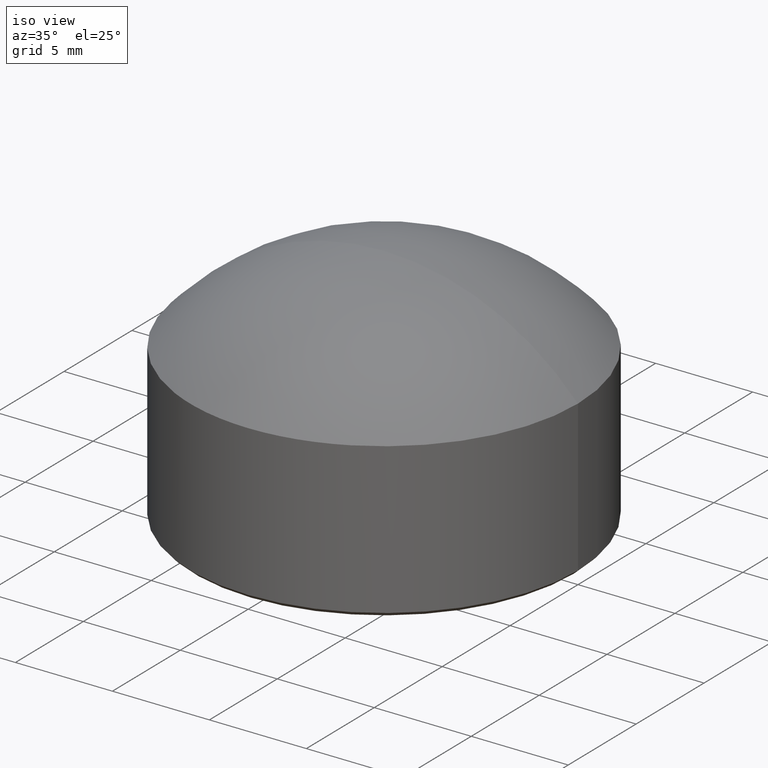
[diagram: clean part render]
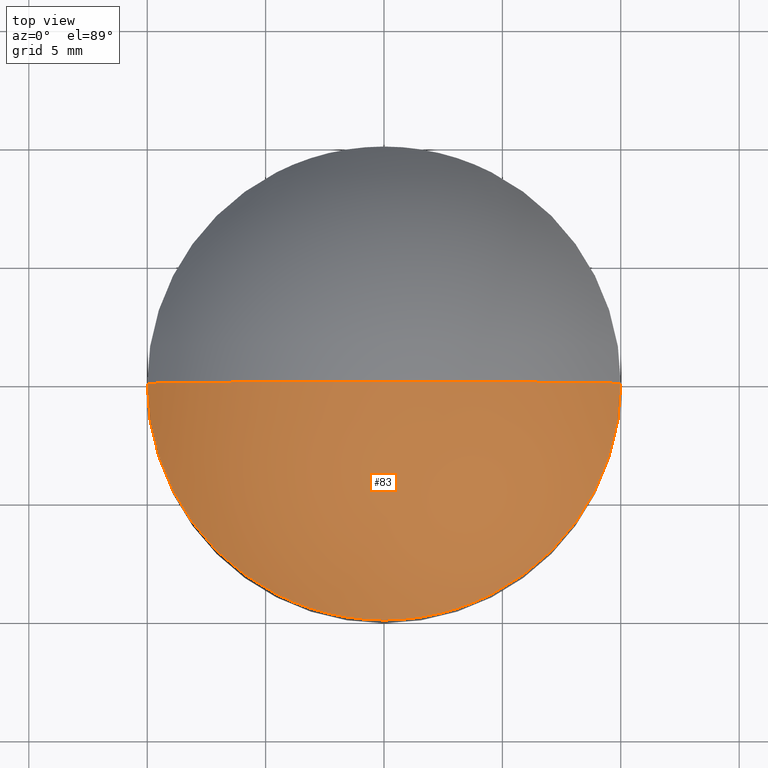
[diagram: tour spotlight — one face highlighted and labeled with its STEP entity id]
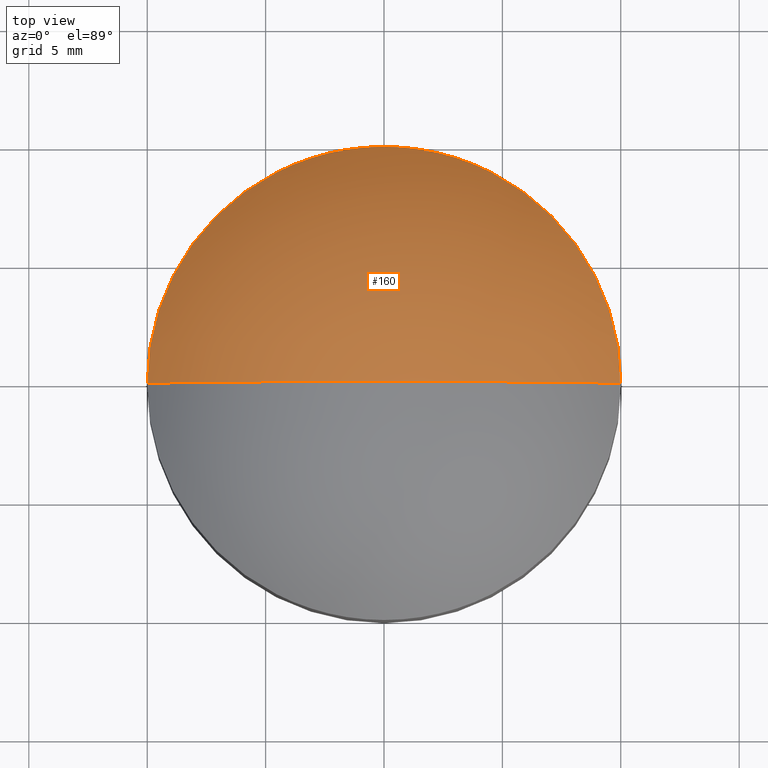
[diagram: tour spotlight — one face highlighted and labeled with its STEP entity id]
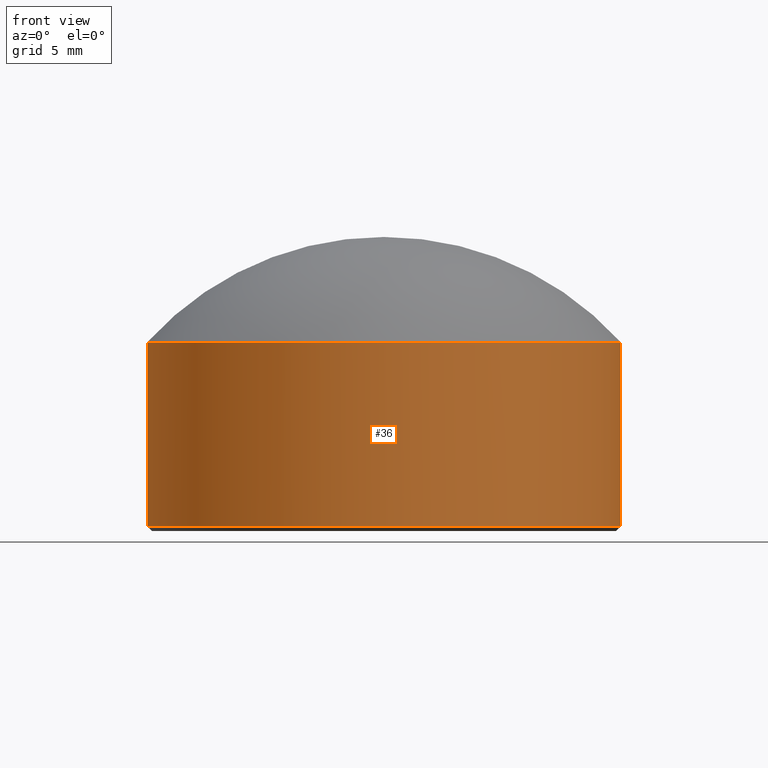
[diagram: tour spotlight — one face highlighted and labeled with its STEP entity id]
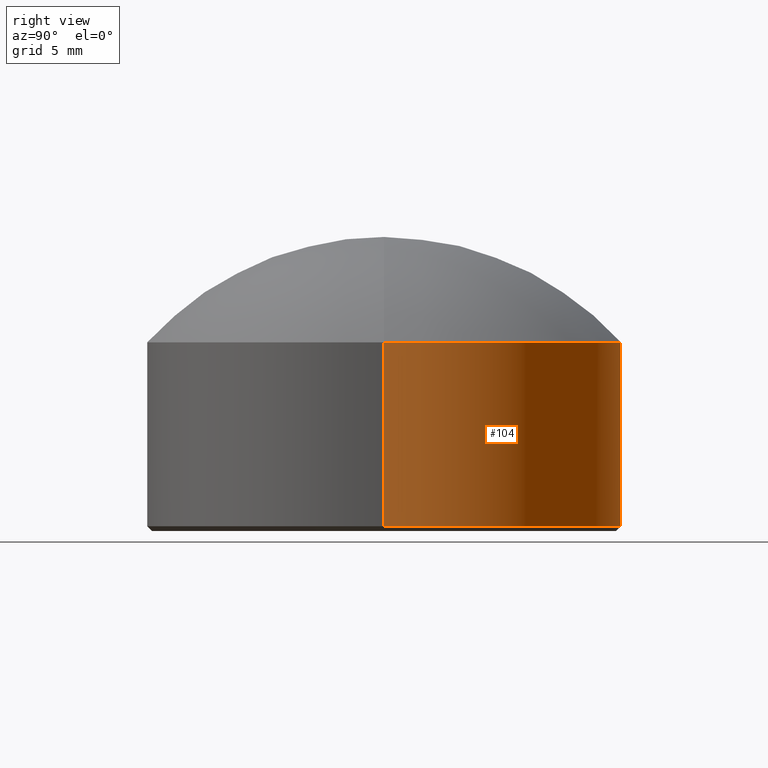
[diagram: tour spotlight — one face highlighted and labeled with its STEP entity id]
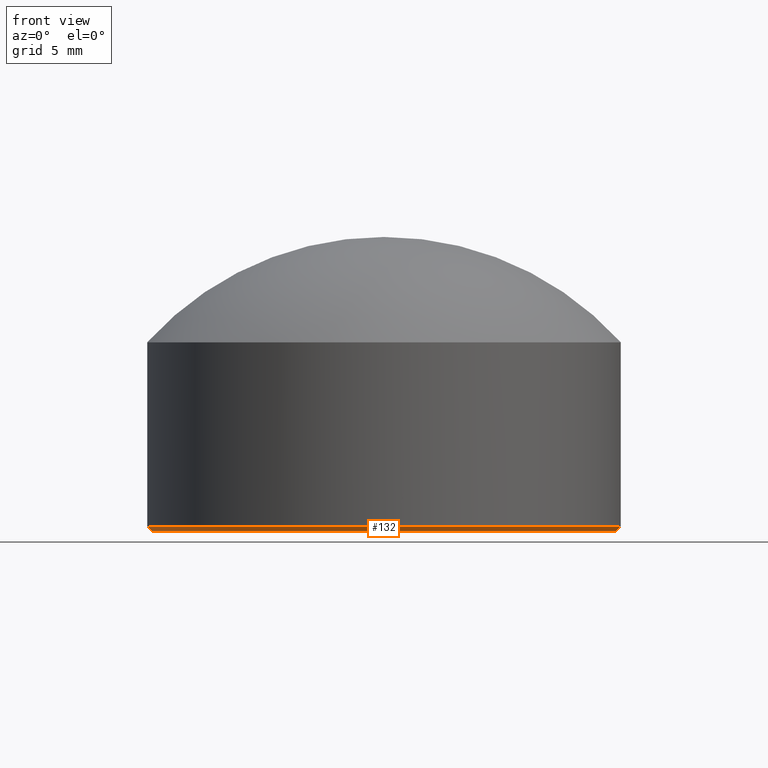
[diagram: tour spotlight — one face highlighted and labeled with its STEP entity id]
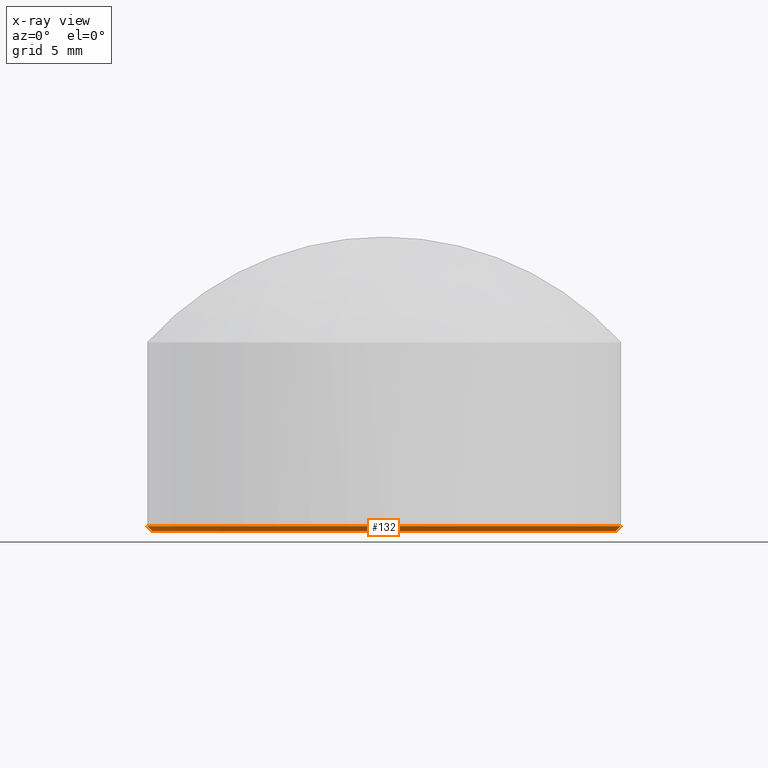
[diagram: x-ray of the same camera — body ghosted, this tour face saturated]
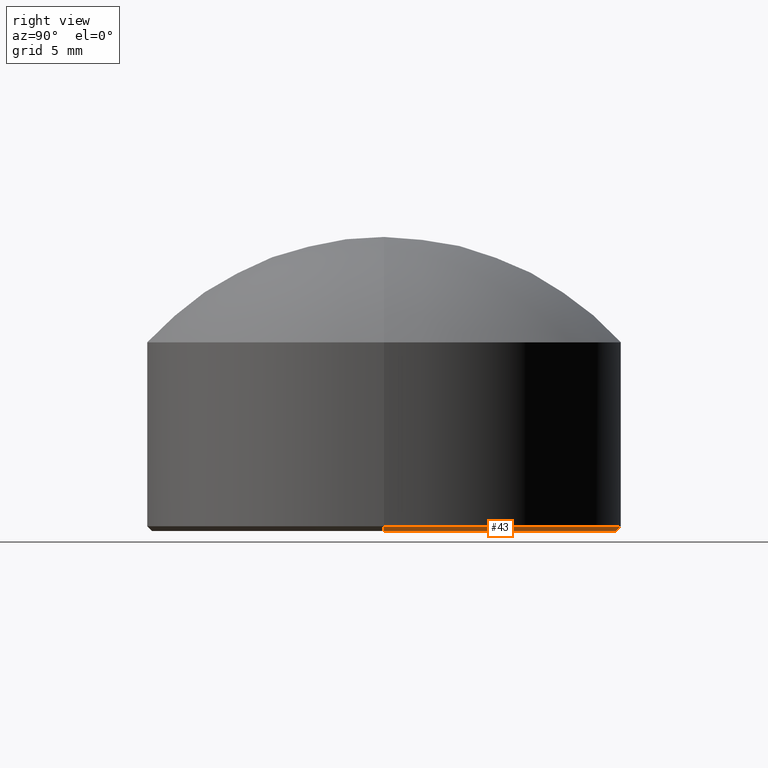
[diagram: tour spotlight — one face highlighted and labeled with its STEP entity id]
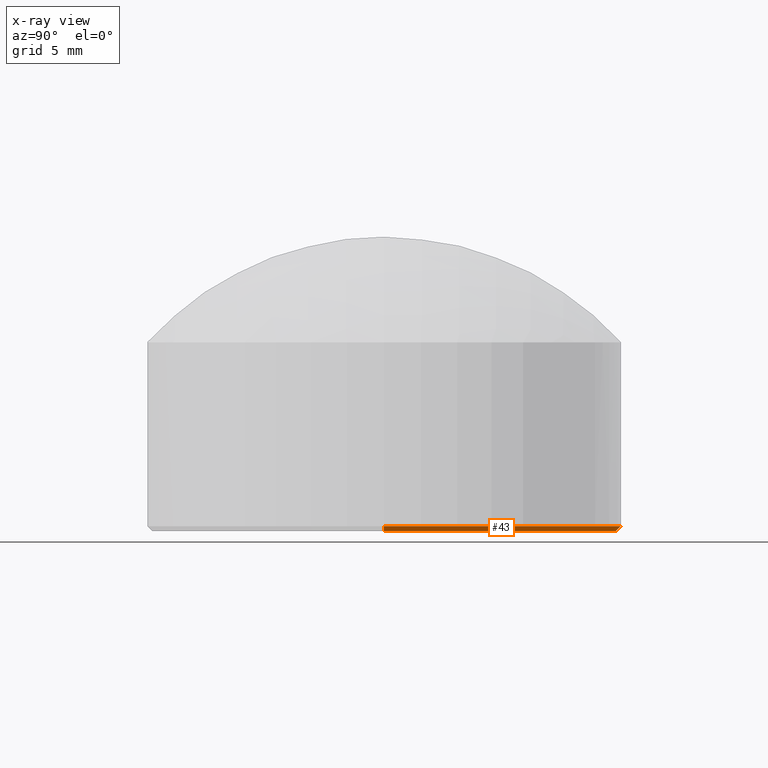
[diagram: x-ray of the same camera — body ghosted, this tour face saturated]
A machine part: a face-by-face anatomy tour. The part has 7 B-rep faces; the first image is the clean iso view, then the 6 largest visible faces are spotlighted one at a time (largest first), each with its STEP entity span.

Face 1 — top view, entity #83. In plain terms, the highlighted spherical surface has radius 13.461 mm.
Definition (entity closure, byte-faithful):
#8 = AXIS2_PLACEMENT_3D ( 'NONE', #114, #180, #177 ) ;
#10 = EDGE_CURVE ( 'NONE', #33, #90, #189, .T. ) ;
#14 = VERTEX_POINT ( 'NONE', #136 ) ;
#18 = ORIENTED_EDGE ( 'NONE', *, *, #138, .T. ) ;
#22 = FACE_OUTER_BOUND ( 'NONE', #52, .T. ) ;
#33 = VERTEX_POINT ( 'NONE', #95 ) ;
#42 = DIRECTION ( 'NONE',  ( -1.000000000000000000, 0.000000000000000000, 0.000000000000000000 ) ) ;
#52 = EDGE_LOOP ( 'NONE', ( #18, #168, #165 ) ) ;
#59 = CARTESIAN_POINT ( 'NONE',  ( 0.000000000000000000, 0.000000000000000000, -1.040955056179774019 ) ) ;
#71 = DIRECTION ( 'NONE',  ( 0.000000000000000000, 1.000000000000000000, 0.000000000000000000 ) ) ;
#76 = SPHERICAL_SURFACE ( 'NONE', #196, 13.46095505617977395 ) ;
#77 = DIRECTION ( 'NONE',  ( 1.000000000000000000, -1.224646799147353207E-16, 0.000000000000000000 ) ) ;
#83 = ADVANCED_FACE ( 'NONE', ( #22 ), #76, .T. ) ;
#90 = VERTEX_POINT ( 'NONE', #110 ) ;
#93 = AXIS2_PLACEMENT_3D ( 'NONE', #216, #71, #171 ) ;
#95 = CARTESIAN_POINT ( 'NONE',  ( -10.00000000000000000, 0.000000000000000000, 7.969999999999999751 ) ) ;
#110 = CARTESIAN_POINT ( 'NONE',  ( -8.242457761508470905E-16, 0.000000000000000000, 12.41999999999999993 ) ) ;
#112 = CIRCLE ( 'NONE', #8, 10.00000000000000000 ) ;
#114 = CARTESIAN_POINT ( 'NONE',  ( 0.000000000000000000, 0.000000000000000000, 7.969999999999999751 ) ) ;
#122 = EDGE_CURVE ( 'NONE', #14, #90, #194, .T. ) ;
#136 = CARTESIAN_POINT ( 'NONE',  ( 10.00000000000000000, 1.224646799147353256E-15, 7.969999999999999751 ) ) ;
#138 = EDGE_CURVE ( 'NONE', #33, #14, #112, .T. ) ;
#146 = CARTESIAN_POINT ( 'NONE',  ( 0.000000000000000000, 0.000000000000000000, -1.040955056179774019 ) ) ;
#165 = ORIENTED_EDGE ( 'NONE', *, *, #10, .F. ) ;
#168 = ORIENTED_EDGE ( 'NONE', *, *, #122, .T. ) ;
#171 = DIRECTION ( 'NONE',  ( 0.000000000000000000, 0.000000000000000000, 1.000000000000000000 ) ) ;
#177 = DIRECTION ( 'NONE',  ( 1.000000000000000000, 0.000000000000000000, 0.000000000000000000 ) ) ;
#178 = AXIS2_PLACEMENT_3D ( 'NONE', #146, #211, #77 ) ;
#180 = DIRECTION ( 'NONE',  ( 0.000000000000000000, 0.000000000000000000, 1.000000000000000000 ) ) ;
#189 = CIRCLE ( 'NONE', #93, 13.46095505617977395 ) ;
#194 = CIRCLE ( 'NONE', #178, 13.46095505617977395 ) ;
#196 = AXIS2_PLACEMENT_3D ( 'NONE', #59, #197, #42 ) ;
#197 = DIRECTION ( 'NONE',  ( -0.000000000000000000, -1.000000000000000000, 0.000000000000000000 ) ) ;
#211 = DIRECTION ( 'NONE',  ( -1.224646799147353207E-16, -1.000000000000000000, -0.000000000000000000 ) ) ;
#216 = CARTESIAN_POINT ( 'NONE',  ( 0.000000000000000000, 0.000000000000000000, -1.040955056179774019 ) ) ;

Face 2 — top view, entity #160. In plain terms, the highlighted spherical surface has radius 13.461 mm.
Definition (entity closure, byte-faithful):
#5 = CARTESIAN_POINT ( 'NONE',  ( 0.000000000000000000, 0.000000000000000000, 7.969999999999999751 ) ) ;
#10 = EDGE_CURVE ( 'NONE', #33, #90, #189, .T. ) ;
#14 = VERTEX_POINT ( 'NONE', #136 ) ;
#23 = EDGE_CURVE ( 'NONE', #14, #33, #69, .T. ) ;
#33 = VERTEX_POINT ( 'NONE', #95 ) ;
#44 = CARTESIAN_POINT ( 'NONE',  ( 0.000000000000000000, 0.000000000000000000, -1.040955056179774019 ) ) ;
#51 = AXIS2_PLACEMENT_3D ( 'NONE', #5, #92, #210 ) ;
#53 = ORIENTED_EDGE ( 'NONE', *, *, #23, .T. ) ;
#69 = CIRCLE ( 'NONE', #51, 10.00000000000000000 ) ;
#71 = DIRECTION ( 'NONE',  ( 0.000000000000000000, 1.000000000000000000, 0.000000000000000000 ) ) ;
#77 = DIRECTION ( 'NONE',  ( 1.000000000000000000, -1.224646799147353207E-16, 0.000000000000000000 ) ) ;
#90 = VERTEX_POINT ( 'NONE', #110 ) ;
#92 = DIRECTION ( 'NONE',  ( 0.000000000000000000, 0.000000000000000000, 1.000000000000000000 ) ) ;
#93 = AXIS2_PLACEMENT_3D ( 'NONE', #216, #71, #171 ) ;
#95 = CARTESIAN_POINT ( 'NONE',  ( -10.00000000000000000, 0.000000000000000000, 7.969999999999999751 ) ) ;
#110 = CARTESIAN_POINT ( 'NONE',  ( -8.242457761508470905E-16, 0.000000000000000000, 12.41999999999999993 ) ) ;
#113 = DIRECTION ( 'NONE',  ( -0.000000000000000000, -1.000000000000000000, 0.000000000000000000 ) ) ;
#122 = EDGE_CURVE ( 'NONE', #14, #90, #194, .T. ) ;
#128 = SPHERICAL_SURFACE ( 'NONE', #185, 13.46095505617977395 ) ;
#136 = CARTESIAN_POINT ( 'NONE',  ( 10.00000000000000000, 1.224646799147353256E-15, 7.969999999999999751 ) ) ;
#142 = FACE_OUTER_BOUND ( 'NONE', #206, .T. ) ;
#146 = CARTESIAN_POINT ( 'NONE',  ( 0.000000000000000000, 0.000000000000000000, -1.040955056179774019 ) ) ;
#160 = ADVANCED_FACE ( 'NONE', ( #142 ), #128, .T. ) ;
#171 = DIRECTION ( 'NONE',  ( 0.000000000000000000, 0.000000000000000000, 1.000000000000000000 ) ) ;
#178 = AXIS2_PLACEMENT_3D ( 'NONE', #146, #211, #77 ) ;
#185 = AXIS2_PLACEMENT_3D ( 'NONE', #44, #113, #201 ) ;
#189 = CIRCLE ( 'NONE', #93, 13.46095505617977395 ) ;
#194 = CIRCLE ( 'NONE', #178, 13.46095505617977395 ) ;
#195 = ORIENTED_EDGE ( 'NONE', *, *, #10, .T. ) ;
#201 = DIRECTION ( 'NONE',  ( -1.000000000000000000, 0.000000000000000000, 0.000000000000000000 ) ) ;
#204 = ORIENTED_EDGE ( 'NONE', *, *, #122, .F. ) ;
#206 = EDGE_LOOP ( 'NONE', ( #204, #53, #195 ) ) ;
#210 = DIRECTION ( 'NONE',  ( 1.000000000000000000, 0.000000000000000000, 0.000000000000000000 ) ) ;
#211 = DIRECTION ( 'NONE',  ( -1.224646799147353207E-16, -1.000000000000000000, -0.000000000000000000 ) ) ;
#216 = CARTESIAN_POINT ( 'NONE',  ( 0.000000000000000000, 0.000000000000000000, -1.040955056179774019 ) ) ;

Face 3 — front view, entity #36. In plain terms, the highlighted cylindrical surface (partial cylindrical patch) has radius 10 mm, axis along (-0, -0, -1).
Definition (entity closure, byte-faithful):
#4 = DIRECTION ( 'NONE',  ( -1.000000000000000000, 0.000000000000000000, 0.000000000000000000 ) ) ;
#8 = AXIS2_PLACEMENT_3D ( 'NONE', #114, #180, #177 ) ;
#11 = AXIS2_PLACEMENT_3D ( 'NONE', #141, #75, #4 ) ;
#14 = VERTEX_POINT ( 'NONE', #136 ) ;
#25 = CARTESIAN_POINT ( 'NONE',  ( 0.000000000000000000, 0.000000000000000000, 0.2000000000000005107 ) ) ;
#29 = VECTOR ( 'NONE', #147, 1000.000000000000000 ) ;
#33 = VERTEX_POINT ( 'NONE', #95 ) ;
#36 = ADVANCED_FACE ( 'NONE', ( #123 ), #108, .T. ) ;
#45 = DIRECTION ( 'NONE',  ( -0.000000000000000000, -0.000000000000000000, -1.000000000000000000 ) ) ;
#47 = LINE ( 'NONE', #213, #29 ) ;
#63 = CARTESIAN_POINT ( 'NONE',  ( 10.00000000000000000, 1.224646799147353256E-15, 7.969999999999999751 ) ) ;
#74 = CIRCLE ( 'NONE', #140, 10.00000000000000000 ) ;
#75 = DIRECTION ( 'NONE',  ( -0.000000000000000000, -0.000000000000000000, -1.000000000000000000 ) ) ;
#95 = CARTESIAN_POINT ( 'NONE',  ( -10.00000000000000000, 0.000000000000000000, 7.969999999999999751 ) ) ;
#97 = DIRECTION ( 'NONE',  ( -0.000000000000000000, -0.000000000000000000, 1.000000000000000000 ) ) ;
#103 = VERTEX_POINT ( 'NONE', #109 ) ;
#108 = CYLINDRICAL_SURFACE ( 'NONE', #11, 10.00000000000000000 ) ;
#109 = CARTESIAN_POINT ( 'NONE',  ( 10.00000000000000000, 1.224646799147353256E-15, 0.2000000000000005107 ) ) ;
#112 = CIRCLE ( 'NONE', #8, 10.00000000000000000 ) ;
#114 = CARTESIAN_POINT ( 'NONE',  ( 0.000000000000000000, 0.000000000000000000, 7.969999999999999751 ) ) ;
#116 = EDGE_CURVE ( 'NONE', #148, #103, #74, .T. ) ;
#117 = ORIENTED_EDGE ( 'NONE', *, *, #116, .T. ) ;
#118 = ORIENTED_EDGE ( 'NONE', *, *, #184, .T. ) ;
#121 = ORIENTED_EDGE ( 'NONE', *, *, #138, .F. ) ;
#123 = FACE_OUTER_BOUND ( 'NONE', #214, .T. ) ;
#125 = VECTOR ( 'NONE', #45, 1000.000000000000000 ) ;
#136 = CARTESIAN_POINT ( 'NONE',  ( 10.00000000000000000, 1.224646799147353256E-15, 7.969999999999999751 ) ) ;
#138 = EDGE_CURVE ( 'NONE', #33, #14, #112, .T. ) ;
#140 = AXIS2_PLACEMENT_3D ( 'NONE', #25, #97, #144 ) ;
#141 = CARTESIAN_POINT ( 'NONE',  ( 0.000000000000000000, 0.000000000000000000, 7.969999999999999751 ) ) ;
#144 = DIRECTION ( 'NONE',  ( 1.000000000000000000, 0.000000000000000000, 0.000000000000000000 ) ) ;
#147 = DIRECTION ( 'NONE',  ( -0.000000000000000000, -0.000000000000000000, -1.000000000000000000 ) ) ;
#148 = VERTEX_POINT ( 'NONE', #163 ) ;
#163 = CARTESIAN_POINT ( 'NONE',  ( -10.00000000000000000, 0.000000000000000000, 0.2000000000000005107 ) ) ;
#172 = ORIENTED_EDGE ( 'NONE', *, *, #209, .F. ) ;
#177 = DIRECTION ( 'NONE',  ( 1.000000000000000000, 0.000000000000000000, 0.000000000000000000 ) ) ;
#180 = DIRECTION ( 'NONE',  ( 0.000000000000000000, 0.000000000000000000, 1.000000000000000000 ) ) ;
#184 = EDGE_CURVE ( 'NONE', #33, #148, #47, .T. ) ;
#202 = LINE ( 'NONE', #63, #125 ) ;
#209 = EDGE_CURVE ( 'NONE', #14, #103, #202, .T. ) ;
#213 = CARTESIAN_POINT ( 'NONE',  ( -10.00000000000000000, 0.000000000000000000, 7.969999999999999751 ) ) ;
#214 = EDGE_LOOP ( 'NONE', ( #172, #121, #118, #117 ) ) ;

Face 4 — right view, entity #104. In plain terms, the highlighted cylindrical surface (partial cylindrical patch) has radius 10 mm, axis along (-0, -0, -1).
Definition (entity closure, byte-faithful):
#5 = CARTESIAN_POINT ( 'NONE',  ( 0.000000000000000000, 0.000000000000000000, 7.969999999999999751 ) ) ;
#14 = VERTEX_POINT ( 'NONE', #136 ) ;
#15 = ORIENTED_EDGE ( 'NONE', *, *, #184, .F. ) ;
#20 = DIRECTION ( 'NONE',  ( -0.000000000000000000, -0.000000000000000000, 1.000000000000000000 ) ) ;
#23 = EDGE_CURVE ( 'NONE', #14, #33, #69, .T. ) ;
#29 = VECTOR ( 'NONE', #147, 1000.000000000000000 ) ;
#31 = ORIENTED_EDGE ( 'NONE', *, *, #23, .F. ) ;
#33 = VERTEX_POINT ( 'NONE', #95 ) ;
#35 = EDGE_LOOP ( 'NONE', ( #31, #88, #64, #15 ) ) ;
#45 = DIRECTION ( 'NONE',  ( -0.000000000000000000, -0.000000000000000000, -1.000000000000000000 ) ) ;
#47 = LINE ( 'NONE', #213, #29 ) ;
#51 = AXIS2_PLACEMENT_3D ( 'NONE', #5, #92, #210 ) ;
#56 = EDGE_CURVE ( 'NONE', #103, #148, #135, .T. ) ;
#63 = CARTESIAN_POINT ( 'NONE',  ( 10.00000000000000000, 1.224646799147353256E-15, 7.969999999999999751 ) ) ;
#64 = ORIENTED_EDGE ( 'NONE', *, *, #56, .T. ) ;
#65 = AXIS2_PLACEMENT_3D ( 'NONE', #208, #20, #159 ) ;
#69 = CIRCLE ( 'NONE', #51, 10.00000000000000000 ) ;
#78 = DIRECTION ( 'NONE',  ( -1.000000000000000000, 0.000000000000000000, 0.000000000000000000 ) ) ;
#79 = DIRECTION ( 'NONE',  ( -0.000000000000000000, -0.000000000000000000, -1.000000000000000000 ) ) ;
#88 = ORIENTED_EDGE ( 'NONE', *, *, #209, .T. ) ;
#92 = DIRECTION ( 'NONE',  ( 0.000000000000000000, 0.000000000000000000, 1.000000000000000000 ) ) ;
#95 = CARTESIAN_POINT ( 'NONE',  ( -10.00000000000000000, 0.000000000000000000, 7.969999999999999751 ) ) ;
#103 = VERTEX_POINT ( 'NONE', #109 ) ;
#104 = ADVANCED_FACE ( 'NONE', ( #161 ), #126, .T. ) ;
#109 = CARTESIAN_POINT ( 'NONE',  ( 10.00000000000000000, 1.224646799147353256E-15, 0.2000000000000005107 ) ) ;
#125 = VECTOR ( 'NONE', #45, 1000.000000000000000 ) ;
#126 = CYLINDRICAL_SURFACE ( 'NONE', #170, 10.00000000000000000 ) ;
#135 = CIRCLE ( 'NONE', #65, 10.00000000000000000 ) ;
#136 = CARTESIAN_POINT ( 'NONE',  ( 10.00000000000000000, 1.224646799147353256E-15, 7.969999999999999751 ) ) ;
#147 = DIRECTION ( 'NONE',  ( -0.000000000000000000, -0.000000000000000000, -1.000000000000000000 ) ) ;
#148 = VERTEX_POINT ( 'NONE', #163 ) ;
#159 = DIRECTION ( 'NONE',  ( 1.000000000000000000, 0.000000000000000000, 0.000000000000000000 ) ) ;
#161 = FACE_OUTER_BOUND ( 'NONE', #35, .T. ) ;
#163 = CARTESIAN_POINT ( 'NONE',  ( -10.00000000000000000, 0.000000000000000000, 0.2000000000000005107 ) ) ;
#170 = AXIS2_PLACEMENT_3D ( 'NONE', #176, #79, #78 ) ;
#176 = CARTESIAN_POINT ( 'NONE',  ( 0.000000000000000000, 0.000000000000000000, 7.969999999999999751 ) ) ;
#184 = EDGE_CURVE ( 'NONE', #33, #148, #47, .T. ) ;
#202 = LINE ( 'NONE', #63, #125 ) ;
#208 = CARTESIAN_POINT ( 'NONE',  ( 0.000000000000000000, 0.000000000000000000, 0.2000000000000005107 ) ) ;
#209 = EDGE_CURVE ( 'NONE', #14, #103, #202, .T. ) ;
#210 = DIRECTION ( 'NONE',  ( 1.000000000000000000, 0.000000000000000000, 0.000000000000000000 ) ) ;
#213 = CARTESIAN_POINT ( 'NONE',  ( -10.00000000000000000, 0.000000000000000000, 7.969999999999999751 ) ) ;

Face 5 — front view, entity #132. An x-ray twin of the same camera follows (body ghosted, this face saturated) — the face is partly hidden behind the body. In plain terms, the highlighted conical surface has half-angle 45 deg.
Definition (entity closure, byte-faithful):
#17 = ORIENTED_EDGE ( 'NONE', *, *, #179, .F. ) ;
#19 = EDGE_CURVE ( 'NONE', #183, #103, #205, .T. ) ;
#21 = VECTOR ( 'NONE', #173, 1000.000000000000114 ) ;
#25 = CARTESIAN_POINT ( 'NONE',  ( 0.000000000000000000, 0.000000000000000000, 0.2000000000000005107 ) ) ;
#27 = DIRECTION ( 'NONE',  ( -0.7071067811865474617, 8.659560562354932858E-17, 0.7071067811865474617 ) ) ;
#37 = VERTEX_POINT ( 'NONE', #175 ) ;
#49 = AXIS2_PLACEMENT_3D ( 'NONE', #200, #131, #164 ) ;
#54 = EDGE_LOOP ( 'NONE', ( #81, #17, #101, #120 ) ) ;
#61 = CARTESIAN_POINT ( 'NONE',  ( -10.00000000000000000, 1.224646799147353256E-15, 0.2000000000000005107 ) ) ;
#74 = CIRCLE ( 'NONE', #140, 10.00000000000000000 ) ;
#80 = DIRECTION ( 'NONE',  ( -0.000000000000000000, -0.000000000000000000, -1.000000000000000000 ) ) ;
#81 = ORIENTED_EDGE ( 'NONE', *, *, #127, .F. ) ;
#96 = FACE_OUTER_BOUND ( 'NONE', #54, .T. ) ;
#97 = DIRECTION ( 'NONE',  ( -0.000000000000000000, -0.000000000000000000, 1.000000000000000000 ) ) ;
#101 = ORIENTED_EDGE ( 'NONE', *, *, #19, .T. ) ;
#103 = VERTEX_POINT ( 'NONE', #109 ) ;
#107 = CARTESIAN_POINT ( 'NONE',  ( 10.00000000000000000, 0.000000000000000000, 0.2000000000000005107 ) ) ;
#109 = CARTESIAN_POINT ( 'NONE',  ( 10.00000000000000000, 1.224646799147353256E-15, 0.2000000000000005107 ) ) ;
#116 = EDGE_CURVE ( 'NONE', #148, #103, #74, .T. ) ;
#120 = ORIENTED_EDGE ( 'NONE', *, *, #116, .F. ) ;
#127 = EDGE_CURVE ( 'NONE', #37, #148, #212, .T. ) ;
#131 = DIRECTION ( 'NONE',  ( -0.000000000000000000, -0.000000000000000000, 1.000000000000000000 ) ) ;
#132 = ADVANCED_FACE ( 'NONE', ( #96 ), #207, .T. ) ;
#134 = CARTESIAN_POINT ( 'NONE',  ( 9.799999999999998934, 0.000000000000000000, 0.000000000000000000 ) ) ;
#140 = AXIS2_PLACEMENT_3D ( 'NONE', #25, #97, #144 ) ;
#144 = DIRECTION ( 'NONE',  ( 1.000000000000000000, 0.000000000000000000, 0.000000000000000000 ) ) ;
#148 = VERTEX_POINT ( 'NONE', #163 ) ;
#157 = CIRCLE ( 'NONE', #193, 9.799999999999998934 ) ;
#163 = CARTESIAN_POINT ( 'NONE',  ( -10.00000000000000000, 0.000000000000000000, 0.2000000000000005107 ) ) ;
#164 = DIRECTION ( 'NONE',  ( 1.000000000000000000, 0.000000000000000000, 0.000000000000000000 ) ) ;
#167 = DIRECTION ( 'NONE',  ( 1.000000000000000000, 0.000000000000000000, 0.000000000000000000 ) ) ;
#173 = DIRECTION ( 'NONE',  ( 0.7071067811865474617, 0.000000000000000000, 0.7071067811865474617 ) ) ;
#175 = CARTESIAN_POINT ( 'NONE',  ( -9.799999999999998934, 1.212400331155879505E-15, 0.000000000000000000 ) ) ;
#179 = EDGE_CURVE ( 'NONE', #183, #37, #157, .T. ) ;
#183 = VERTEX_POINT ( 'NONE', #134 ) ;
#193 = AXIS2_PLACEMENT_3D ( 'NONE', #198, #80, #167 ) ;
#198 = CARTESIAN_POINT ( 'NONE',  ( 0.000000000000000000, 0.000000000000000000, 0.000000000000000000 ) ) ;
#200 = CARTESIAN_POINT ( 'NONE',  ( 0.000000000000000000, 0.000000000000000000, 0.2000000000000005107 ) ) ;
#203 = VECTOR ( 'NONE', #27, 1000.000000000000114 ) ;
#205 = LINE ( 'NONE', #107, #21 ) ;
#207 = CONICAL_SURFACE ( 'NONE', #49, 10.00000000000000000, 0.7853981633974482790 ) ;
#212 = LINE ( 'NONE', #61, #203 ) ;

Face 6 — right view, entity #43. An x-ray twin of the same camera follows (body ghosted, this face saturated) — the face is partly hidden behind the body. In plain terms, the highlighted conical surface has half-angle 45 deg.
Definition (entity closure, byte-faithful):
#19 = EDGE_CURVE ( 'NONE', #183, #103, #205, .T. ) ;
#20 = DIRECTION ( 'NONE',  ( -0.000000000000000000, -0.000000000000000000, 1.000000000000000000 ) ) ;
#21 = VECTOR ( 'NONE', #173, 1000.000000000000114 ) ;
#24 = CIRCLE ( 'NONE', #55, 9.799999999999998934 ) ;
#27 = DIRECTION ( 'NONE',  ( -0.7071067811865474617, 8.659560562354932858E-17, 0.7071067811865474617 ) ) ;
#30 = ORIENTED_EDGE ( 'NONE', *, *, #56, .F. ) ;
#37 = VERTEX_POINT ( 'NONE', #175 ) ;
#39 = CONICAL_SURFACE ( 'NONE', #162, 10.00000000000000000, 0.7853981633974482790 ) ;
#41 = CARTESIAN_POINT ( 'NONE',  ( 0.000000000000000000, 0.000000000000000000, 0.2000000000000005107 ) ) ;
#43 = ADVANCED_FACE ( 'NONE', ( #73 ), #39, .T. ) ;
#55 = AXIS2_PLACEMENT_3D ( 'NONE', #145, #133, #115 ) ;
#56 = EDGE_CURVE ( 'NONE', #103, #148, #135, .T. ) ;
#61 = CARTESIAN_POINT ( 'NONE',  ( -10.00000000000000000, 1.224646799147353256E-15, 0.2000000000000005107 ) ) ;
#65 = AXIS2_PLACEMENT_3D ( 'NONE', #208, #20, #159 ) ;
#67 = ORIENTED_EDGE ( 'NONE', *, *, #127, .T. ) ;
#73 = FACE_OUTER_BOUND ( 'NONE', #169, .T. ) ;
#103 = VERTEX_POINT ( 'NONE', #109 ) ;
#107 = CARTESIAN_POINT ( 'NONE',  ( 10.00000000000000000, 0.000000000000000000, 0.2000000000000005107 ) ) ;
#109 = CARTESIAN_POINT ( 'NONE',  ( 10.00000000000000000, 1.224646799147353256E-15, 0.2000000000000005107 ) ) ;
#115 = DIRECTION ( 'NONE',  ( 1.000000000000000000, 0.000000000000000000, 0.000000000000000000 ) ) ;
#124 = DIRECTION ( 'NONE',  ( 1.000000000000000000, 0.000000000000000000, 0.000000000000000000 ) ) ;
#127 = EDGE_CURVE ( 'NONE', #37, #148, #212, .T. ) ;
#133 = DIRECTION ( 'NONE',  ( -0.000000000000000000, -0.000000000000000000, -1.000000000000000000 ) ) ;
#134 = CARTESIAN_POINT ( 'NONE',  ( 9.799999999999998934, 0.000000000000000000, 0.000000000000000000 ) ) ;
#135 = CIRCLE ( 'NONE', #65, 10.00000000000000000 ) ;
#137 = DIRECTION ( 'NONE',  ( -0.000000000000000000, -0.000000000000000000, 1.000000000000000000 ) ) ;
#145 = CARTESIAN_POINT ( 'NONE',  ( 0.000000000000000000, 0.000000000000000000, 0.000000000000000000 ) ) ;
#148 = VERTEX_POINT ( 'NONE', #163 ) ;
#159 = DIRECTION ( 'NONE',  ( 1.000000000000000000, 0.000000000000000000, 0.000000000000000000 ) ) ;
#162 = AXIS2_PLACEMENT_3D ( 'NONE', #41, #137, #124 ) ;
#163 = CARTESIAN_POINT ( 'NONE',  ( -10.00000000000000000, 0.000000000000000000, 0.2000000000000005107 ) ) ;
#169 = EDGE_LOOP ( 'NONE', ( #187, #67, #30, #188 ) ) ;
#173 = DIRECTION ( 'NONE',  ( 0.7071067811865474617, 0.000000000000000000, 0.7071067811865474617 ) ) ;
#175 = CARTESIAN_POINT ( 'NONE',  ( -9.799999999999998934, 1.212400331155879505E-15, 0.000000000000000000 ) ) ;
#183 = VERTEX_POINT ( 'NONE', #134 ) ;
#187 = ORIENTED_EDGE ( 'NONE', *, *, #191, .F. ) ;
#188 = ORIENTED_EDGE ( 'NONE', *, *, #19, .F. ) ;
#191 = EDGE_CURVE ( 'NONE', #37, #183, #24, .T. ) ;
#203 = VECTOR ( 'NONE', #27, 1000.000000000000114 ) ;
#205 = LINE ( 'NONE', #107, #21 ) ;
#208 = CARTESIAN_POINT ( 'NONE',  ( 0.000000000000000000, 0.000000000000000000, 0.2000000000000005107 ) ) ;
#212 = LINE ( 'NONE', #61, #203 ) ;